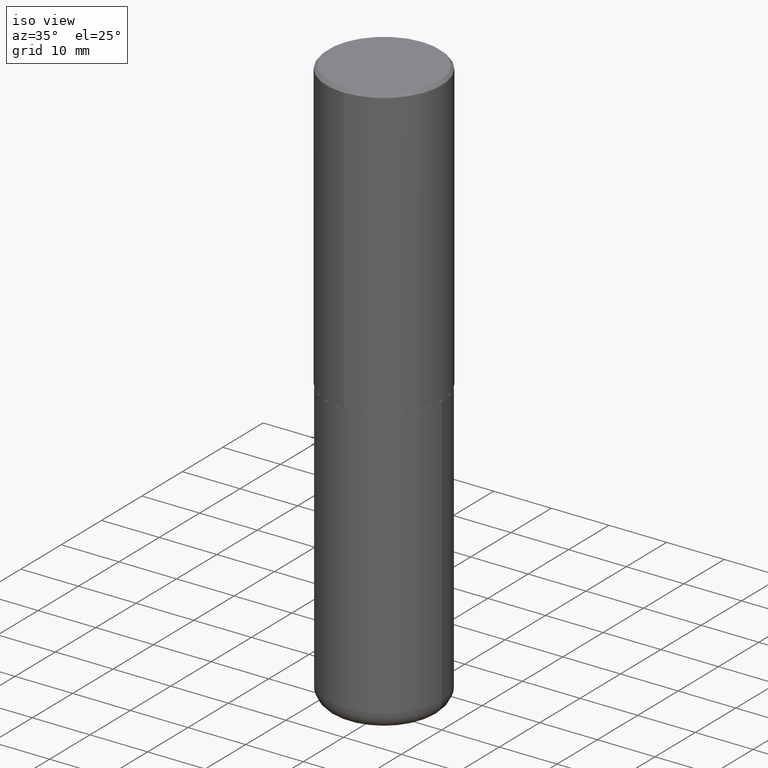
[diagram: clean part render]
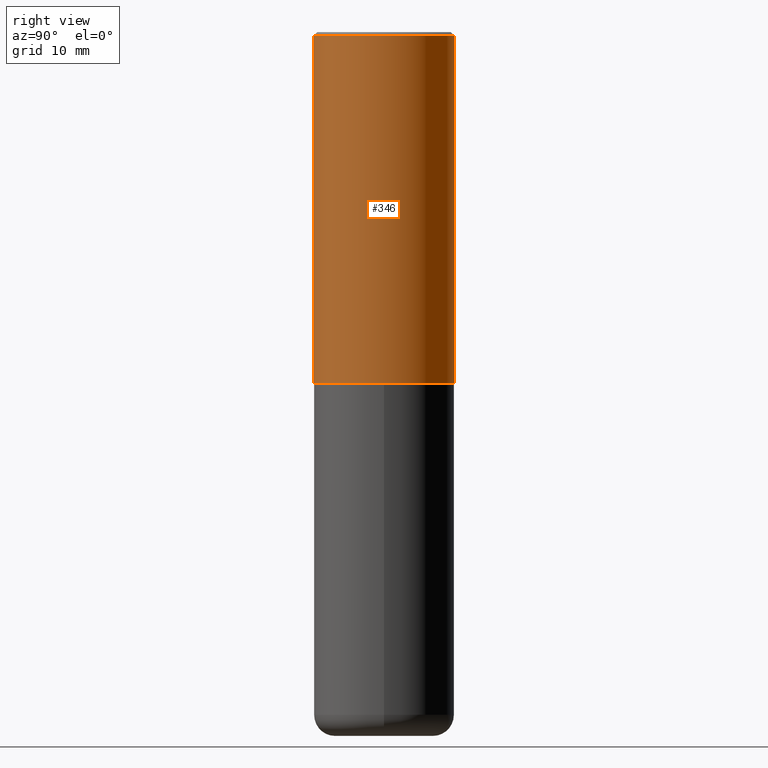
[diagram: tour spotlight — one face highlighted and labeled with its STEP entity id]
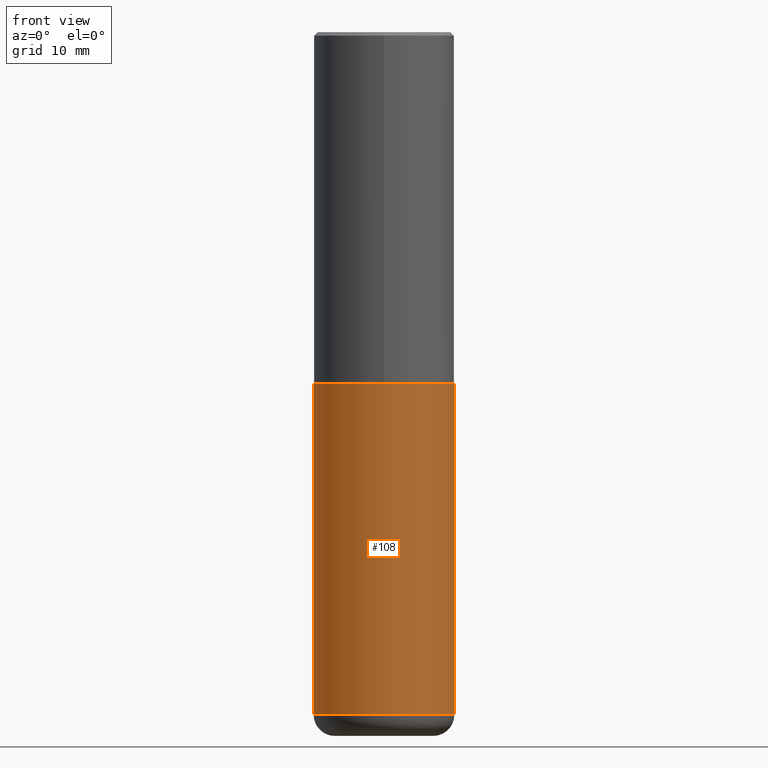
[diagram: tour spotlight — one face highlighted and labeled with its STEP entity id]
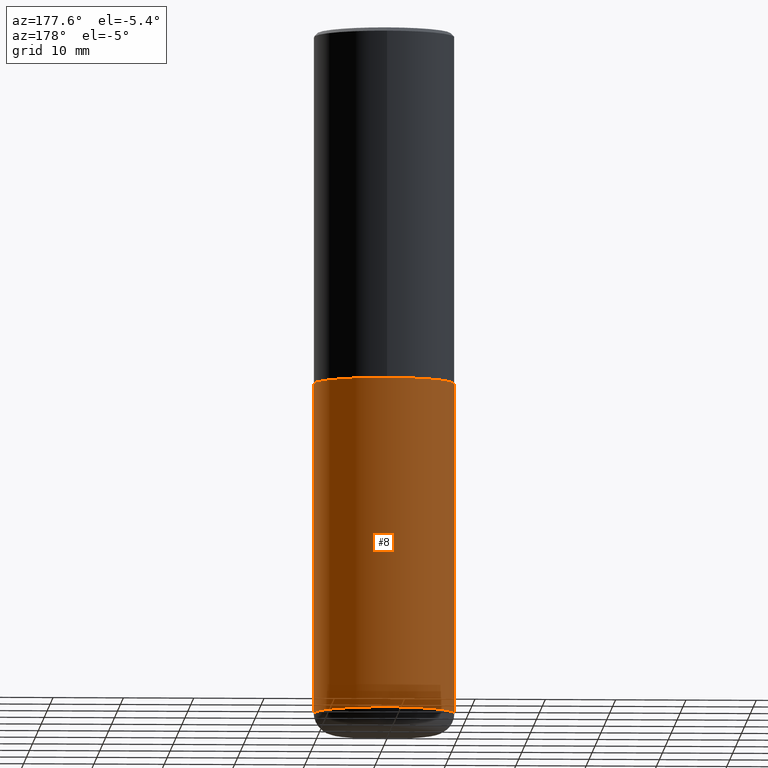
[diagram: tour spotlight — one face highlighted and labeled with its STEP entity id]
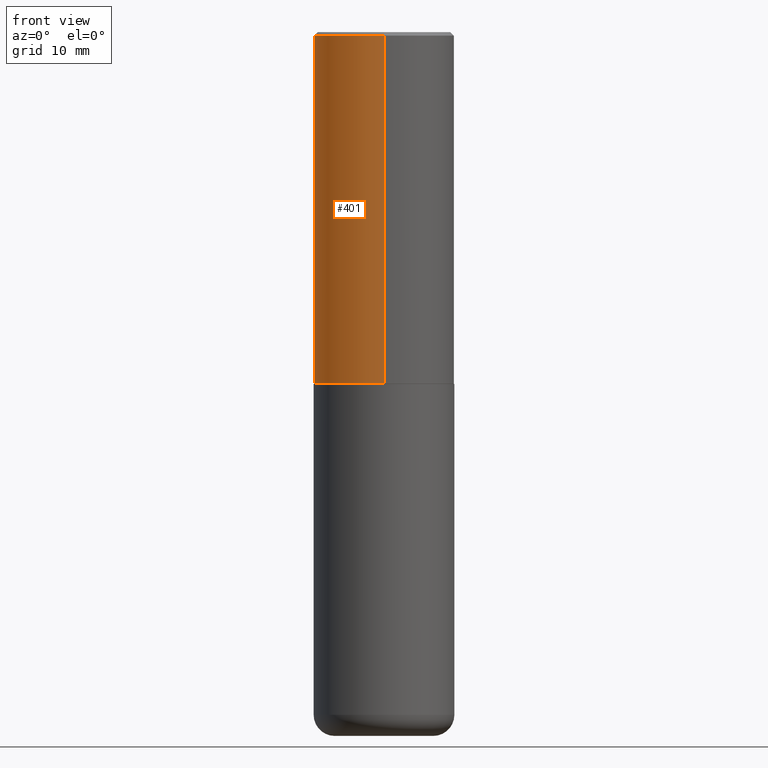
[diagram: tour spotlight — one face highlighted and labeled with its STEP entity id]
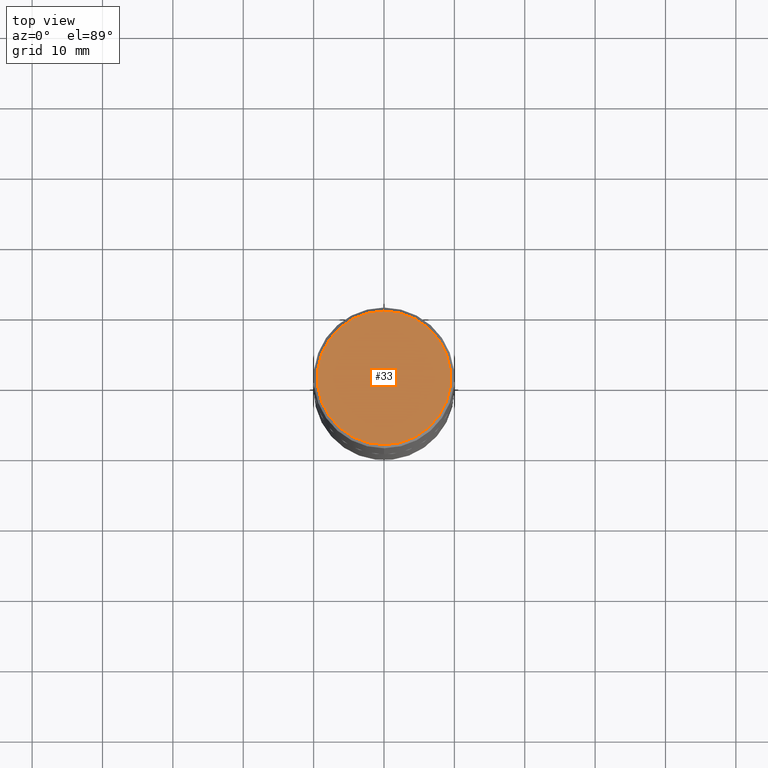
[diagram: tour spotlight — one face highlighted and labeled with its STEP entity id]
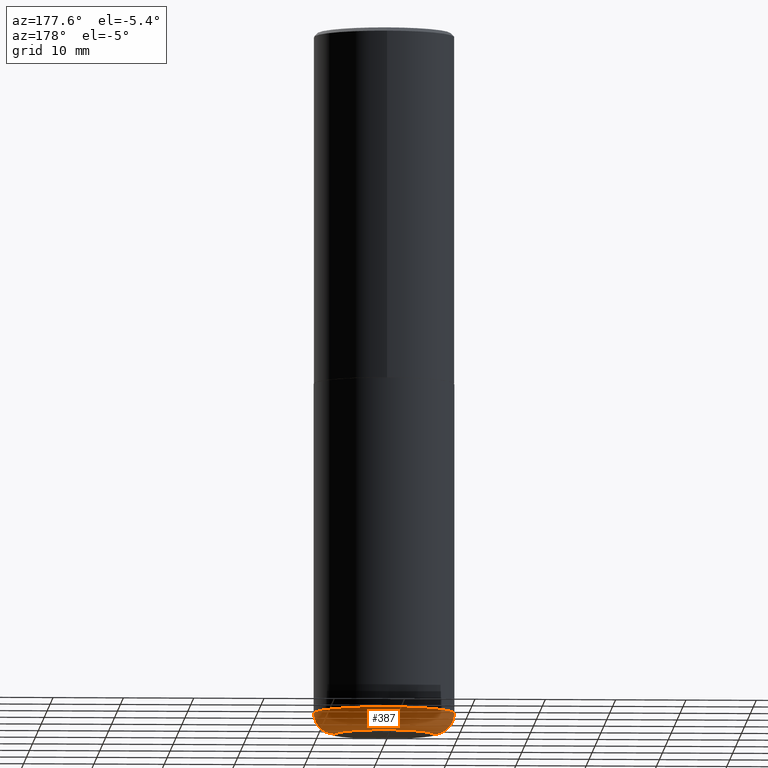
[diagram: tour spotlight — one face highlighted and labeled with its STEP entity id]
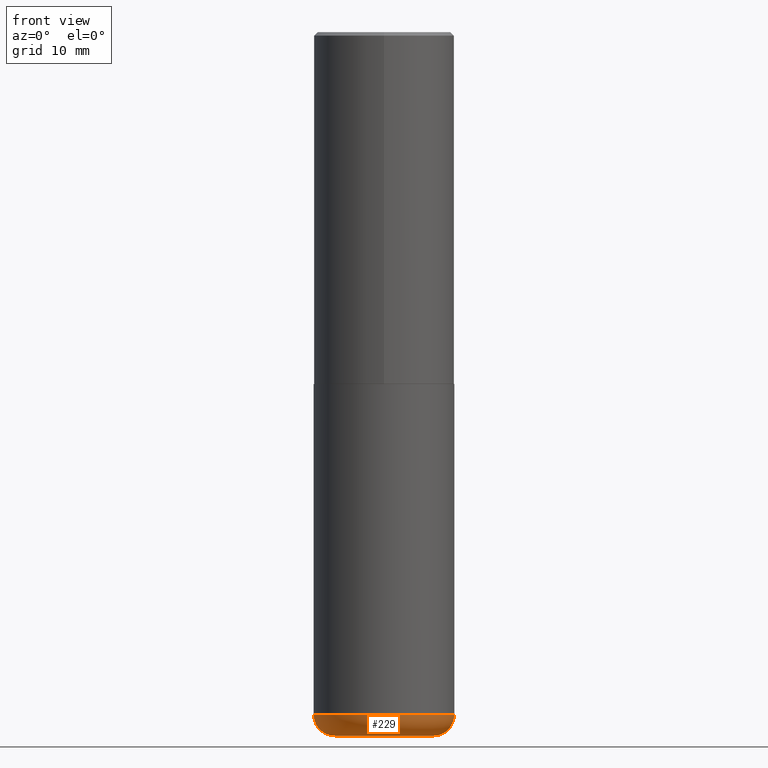
[diagram: tour spotlight — one face highlighted and labeled with its STEP entity id]
A machine part: a face-by-face anatomy tour. The part has 14 B-rep faces; the first image is the clean iso view, then the 7 largest visible faces are spotlighted one at a time (largest first), each with its STEP entity span.

Face 1 — right view, entity #346. In plain terms, the highlighted cylindrical surface (partial cylindrical patch) has radius 10 mm, axis along (-0, 0, 1).
Definition (entity closure, byte-faithful):
#3 = AXIS2_PLACEMENT_3D ( 'NONE', #375, #176, #403 ) ;
#40 = CARTESIAN_POINT ( 'NONE',  ( -2.749192406205084400E-15, -0.3937000000000002164, 1.373224176831512262E-15 ) ) ;
#46 = CARTESIAN_POINT ( 'NONE',  ( -2.749192406205036674E-15, -0.3937000000000070998, -1.967499999999998694 ) ) ;
#69 = ORIENTED_EDGE ( 'NONE', *, *, #71, .F. ) ;
#71 = EDGE_CURVE ( 'NONE', #351, #330, #103, .T. ) ;
#72 = DIRECTION ( 'NONE',  ( -6.982962677686265922E-15, -1.000000000000000000, 3.487996385144809360E-15 ) ) ;
#88 = DIRECTION ( 'NONE',  ( -2.447902336346030930E-29, 3.487996385144809755E-15, 1.000000000000000000 ) ) ;
#94 = VERTEX_POINT ( 'NONE', #344 ) ;
#96 = FACE_OUTER_BOUND ( 'NONE', #312, .T. ) ;
#103 = CIRCLE ( 'NONE', #309, 0.3937000000000001054 ) ;
#105 = CARTESIAN_POINT ( 'NONE',  ( 2.797406750687515575E-15, 0.3937000000000002164, -1.373224176831512262E-15 ) ) ;
#115 = CARTESIAN_POINT ( 'NONE',  ( 4.895804672692082949E-31, -6.975992770289649092E-17, -0.02000000000000008715 ) ) ;
#143 = LINE ( 'NONE', #40, #180 ) ;
#172 = CARTESIAN_POINT ( 'NONE',  ( -2.700978061722651647E-15, -0.3937000000000001609, -0.01999999999999870978 ) ) ;
#176 = DIRECTION ( 'NONE',  ( -2.447902336346030930E-29, 3.487996385144809755E-15, 1.000000000000000000 ) ) ;
#180 = VECTOR ( 'NONE', #283, 39.37007874015748143 ) ;
#185 = ORIENTED_EDGE ( 'NONE', *, *, #308, .T. ) ;
#208 = CARTESIAN_POINT ( 'NONE',  ( 2.749192406205084005E-15, 0.3937000000000000499, -0.02000000000000146105 ) ) ;
#231 = DIRECTION ( 'NONE',  ( -6.982962677686265133E-15, -1.000000000000000000, 3.491137977679279029E-15 ) ) ;
#242 = AXIS2_PLACEMENT_3D ( 'NONE', #246, #315, #72 ) ;
#246 = CARTESIAN_POINT ( 'NONE',  ( 0.000000000000000000, 0.000000000000000000, 0.000000000000000000 ) ) ;
#254 = LINE ( 'NONE', #105, #414 ) ;
#283 = DIRECTION ( 'NONE',  ( -2.447902336346030930E-29, 3.487996385144809360E-15, 1.000000000000000000 ) ) ;
#286 = CYLINDRICAL_SURFACE ( 'NONE', #242, 0.3937000000000002164 ) ;
#292 = CIRCLE ( 'NONE', #3, 0.3937000000000002720 ) ;
#308 = EDGE_CURVE ( 'NONE', #327, #94, #292, .T. ) ;
#309 = AXIS2_PLACEMENT_3D ( 'NONE', #115, #88, #231 ) ;
#312 = EDGE_LOOP ( 'NONE', ( #185, #364, #69, #365 ) ) ;
#315 = DIRECTION ( 'NONE',  ( -2.447902336346030930E-29, 3.487996385144809755E-15, 1.000000000000000000 ) ) ;
#316 = DIRECTION ( 'NONE',  ( -2.447902336346030930E-29, 3.487996385144809360E-15, 1.000000000000000000 ) ) ;
#327 = VERTEX_POINT ( 'NONE', #46 ) ;
#330 = VERTEX_POINT ( 'NONE', #208 ) ;
#344 = CARTESIAN_POINT ( 'NONE',  ( 2.797406750687540424E-15, 0.3936999999999934441, -1.967500000000001359 ) ) ;
#346 = ADVANCED_FACE ( 'NONE', ( #96 ), #286, .T. ) ;
#351 = VERTEX_POINT ( 'NONE', #172 ) ;
#364 = ORIENTED_EDGE ( 'NONE', *, *, #400, .T. ) ;
#365 = ORIENTED_EDGE ( 'NONE', *, *, #384, .F. ) ;
#375 = CARTESIAN_POINT ( 'NONE',  ( 4.816247846760815671E-29, -6.862632887772413316E-15, -1.967500000000000027 ) ) ;
#384 = EDGE_CURVE ( 'NONE', #327, #351, #143, .T. ) ;
#400 = EDGE_CURVE ( 'NONE', #94, #330, #254, .T. ) ;
#403 = DIRECTION ( 'NONE',  ( -6.982962677686265922E-15, -1.000000000000000000, 3.469453890861393601E-15 ) ) ;
#414 = VECTOR ( 'NONE', #316, 39.37007874015748143 ) ;

Face 2 — front view, entity #108. In plain terms, the highlighted cylindrical surface (partial cylindrical patch) has radius 10 mm, axis along (-0, 0, 1).
Definition (entity closure, byte-faithful):
#4 = VERTEX_POINT ( 'NONE', #173 ) ;
#21 = AXIS2_PLACEMENT_3D ( 'NONE', #326, #302, #362 ) ;
#26 = FACE_OUTER_BOUND ( 'NONE', #165, .T. ) ;
#30 = CARTESIAN_POINT ( 'NONE',  ( 9.339000823940418668E-29, -1.333361808490808928E-14, -3.818900000000000183 ) ) ;
#31 = CARTESIAN_POINT ( 'NONE',  ( -0.3937000000000001054, -1.053621133422057529E-14, -3.818900000000000183 ) ) ;
#62 = CARTESIAN_POINT ( 'NONE',  ( 0.3937000000000001054, -2.749192406205084005E-15, 1.919750796630860452E-29 ) ) ;
#65 = AXIS2_PLACEMENT_3D ( 'NONE', #66, #199, #92 ) ;
#66 = CARTESIAN_POINT ( 'NONE',  ( 4.813905344975441835E-29, -6.872981015512731707E-15, -1.968500000000000139 ) ) ;
#77 = EDGE_CURVE ( 'NONE', #417, #4, #356, .T. ) ;
#92 = DIRECTION ( 'NONE',  ( 1.000000000000000000, -6.982962677686265133E-15, 0.000000000000000000 ) ) ;
#108 = ADVANCED_FACE ( 'NONE', ( #26 ), #239, .T. ) ;
#111 = VERTEX_POINT ( 'NONE', #31 ) ;
#112 = CARTESIAN_POINT ( 'NONE',  ( 0.3937000000000001054, -1.608281049111317408E-14, -3.818900000000000183 ) ) ;
#116 = EDGE_CURVE ( 'NONE', #171, #4, #367, .T. ) ;
#155 = ORIENTED_EDGE ( 'NONE', *, *, #77, .T. ) ;
#165 = EDGE_LOOP ( 'NONE', ( #306, #357, #155, #205 ) ) ;
#171 = VERTEX_POINT ( 'NONE', #332 ) ;
#173 = CARTESIAN_POINT ( 'NONE',  ( 0.3937000000000000499, -9.622173421717814924E-15, -1.968500000000000139 ) ) ;
#178 = VECTOR ( 'NONE', #189, 39.37007874015748143 ) ;
#186 = DIRECTION ( 'NONE',  ( 1.000000000000000000, -6.982962677686266711E-15, 0.000000000000000000 ) ) ;
#189 = DIRECTION ( 'NONE',  ( -2.445468806185136877E-29, 3.491481338843145188E-15, 1.000000000000000000 ) ) ;
#199 = DIRECTION ( 'NONE',  ( -2.445468806185136597E-29, 3.491481338843145583E-15, 1.000000000000000000 ) ) ;
#205 = ORIENTED_EDGE ( 'NONE', *, *, #116, .F. ) ;
#207 = EDGE_CURVE ( 'NONE', #111, #171, #334, .T. ) ;
#219 = AXIS2_PLACEMENT_3D ( 'NONE', #30, #307, #186 ) ;
#239 = CYLINDRICAL_SURFACE ( 'NONE', #21, 0.3937000000000001054 ) ;
#265 = EDGE_CURVE ( 'NONE', #111, #417, #373, .T. ) ;
#267 = VECTOR ( 'NONE', #413, 39.37007874015748143 ) ;
#302 = DIRECTION ( 'NONE',  ( -2.445468806185136597E-29, 3.491481338843145583E-15, 1.000000000000000000 ) ) ;
#306 = ORIENTED_EDGE ( 'NONE', *, *, #207, .F. ) ;
#307 = DIRECTION ( 'NONE',  ( -2.445468806185136597E-29, 3.491481338843145583E-15, 1.000000000000000000 ) ) ;
#326 = CARTESIAN_POINT ( 'NONE',  ( 0.000000000000000000, 0.000000000000000000, 0.000000000000000000 ) ) ;
#332 = CARTESIAN_POINT ( 'NONE',  ( -0.3937000000000000499, -7.305892799522895709E-15, -1.968500000000000139 ) ) ;
#334 = LINE ( 'NONE', #352, #178 ) ;
#352 = CARTESIAN_POINT ( 'NONE',  ( -0.3937000000000001054, 2.797406750687515181E-15, -1.936584745033357016E-29 ) ) ;
#356 = LINE ( 'NONE', #62, #267 ) ;
#357 = ORIENTED_EDGE ( 'NONE', *, *, #265, .T. ) ;
#362 = DIRECTION ( 'NONE',  ( 1.000000000000000000, -6.982962677686266711E-15, 4.876176775795935793E-29 ) ) ;
#367 = CIRCLE ( 'NONE', #65, 0.3937000000000000499 ) ;
#373 = CIRCLE ( 'NONE', #219, 0.3937000000000001054 ) ;
#413 = DIRECTION ( 'NONE',  ( -2.445468806185136877E-29, 3.491481338843145188E-15, 1.000000000000000000 ) ) ;
#417 = VERTEX_POINT ( 'NONE', #112 ) ;

Face 3 — auxiliary view, entity #8. In plain terms, the highlighted cylindrical surface (partial cylindrical patch) has radius 10 mm, axis along (-0, 0, 1).
Definition (entity closure, byte-faithful):
#4 = VERTEX_POINT ( 'NONE', #173 ) ;
#8 = ADVANCED_FACE ( 'NONE', ( #106 ), #148, .T. ) ;
#22 = ORIENTED_EDGE ( 'NONE', *, *, #77, .F. ) ;
#31 = CARTESIAN_POINT ( 'NONE',  ( -0.3937000000000001054, -1.053621133422057529E-14, -3.818900000000000183 ) ) ;
#47 = CARTESIAN_POINT ( 'NONE',  ( 4.813905344975441835E-29, -6.872981015512731707E-15, -1.968500000000000139 ) ) ;
#48 = DIRECTION ( 'NONE',  ( 1.000000000000000000, -6.982962677686266711E-15, 4.876176775795935793E-29 ) ) ;
#52 = EDGE_CURVE ( 'NONE', #4, #171, #258, .T. ) ;
#58 = DIRECTION ( 'NONE',  ( -2.445468806185136597E-29, 3.491481338843145583E-15, 1.000000000000000000 ) ) ;
#62 = CARTESIAN_POINT ( 'NONE',  ( 0.3937000000000001054, -2.749192406205084005E-15, 1.919750796630860452E-29 ) ) ;
#70 = AXIS2_PLACEMENT_3D ( 'NONE', #191, #328, #294 ) ;
#77 = EDGE_CURVE ( 'NONE', #417, #4, #356, .T. ) ;
#79 = DIRECTION ( 'NONE',  ( -2.445468806185136597E-29, 3.491481338843145583E-15, 1.000000000000000000 ) ) ;
#83 = EDGE_CURVE ( 'NONE', #417, #111, #331, .T. ) ;
#106 = FACE_OUTER_BOUND ( 'NONE', #114, .T. ) ;
#111 = VERTEX_POINT ( 'NONE', #31 ) ;
#112 = CARTESIAN_POINT ( 'NONE',  ( 0.3937000000000001054, -1.608281049111317408E-14, -3.818900000000000183 ) ) ;
#114 = EDGE_LOOP ( 'NONE', ( #333, #270, #274, #22 ) ) ;
#148 = CYLINDRICAL_SURFACE ( 'NONE', #314, 0.3937000000000001054 ) ;
#171 = VERTEX_POINT ( 'NONE', #332 ) ;
#173 = CARTESIAN_POINT ( 'NONE',  ( 0.3937000000000000499, -9.622173421717814924E-15, -1.968500000000000139 ) ) ;
#178 = VECTOR ( 'NONE', #189, 39.37007874015748143 ) ;
#189 = DIRECTION ( 'NONE',  ( -2.445468806185136877E-29, 3.491481338843145188E-15, 1.000000000000000000 ) ) ;
#191 = CARTESIAN_POINT ( 'NONE',  ( 9.339000823940418668E-29, -1.333361808490808928E-14, -3.818900000000000183 ) ) ;
#196 = AXIS2_PLACEMENT_3D ( 'NONE', #47, #58, #323 ) ;
#207 = EDGE_CURVE ( 'NONE', #111, #171, #334, .T. ) ;
#258 = CIRCLE ( 'NONE', #196, 0.3937000000000000499 ) ;
#267 = VECTOR ( 'NONE', #413, 39.37007874015748143 ) ;
#270 = ORIENTED_EDGE ( 'NONE', *, *, #207, .T. ) ;
#274 = ORIENTED_EDGE ( 'NONE', *, *, #52, .F. ) ;
#294 = DIRECTION ( 'NONE',  ( 1.000000000000000000, -6.982962677686266711E-15, 0.000000000000000000 ) ) ;
#314 = AXIS2_PLACEMENT_3D ( 'NONE', #404, #79, #48 ) ;
#323 = DIRECTION ( 'NONE',  ( 1.000000000000000000, -6.982962677686265133E-15, 0.000000000000000000 ) ) ;
#328 = DIRECTION ( 'NONE',  ( -2.445468806185136597E-29, 3.491481338843145583E-15, 1.000000000000000000 ) ) ;
#331 = CIRCLE ( 'NONE', #70, 0.3937000000000001054 ) ;
#332 = CARTESIAN_POINT ( 'NONE',  ( -0.3937000000000000499, -7.305892799522895709E-15, -1.968500000000000139 ) ) ;
#333 = ORIENTED_EDGE ( 'NONE', *, *, #83, .T. ) ;
#334 = LINE ( 'NONE', #352, #178 ) ;
#352 = CARTESIAN_POINT ( 'NONE',  ( -0.3937000000000001054, 2.797406750687515181E-15, -1.936584745033357016E-29 ) ) ;
#356 = LINE ( 'NONE', #62, #267 ) ;
#404 = CARTESIAN_POINT ( 'NONE',  ( 0.000000000000000000, 0.000000000000000000, 0.000000000000000000 ) ) ;
#413 = DIRECTION ( 'NONE',  ( -2.445468806185136877E-29, 3.491481338843145188E-15, 1.000000000000000000 ) ) ;
#417 = VERTEX_POINT ( 'NONE', #112 ) ;

Face 4 — front view, entity #401. In plain terms, the highlighted cylindrical surface (partial cylindrical patch) has radius 10 mm, axis along (-0, 0, 1).
Definition (entity closure, byte-faithful):
#16 = EDGE_CURVE ( 'NONE', #94, #327, #81, .T. ) ;
#23 = DIRECTION ( 'NONE',  ( -6.982962677686265922E-15, -1.000000000000000000, 3.469453890861393601E-15 ) ) ;
#25 = CARTESIAN_POINT ( 'NONE',  ( 4.895804672692082949E-31, -6.975992770289649092E-17, -0.02000000000000008715 ) ) ;
#36 = AXIS2_PLACEMENT_3D ( 'NONE', #228, #220, #23 ) ;
#40 = CARTESIAN_POINT ( 'NONE',  ( -2.749192406205084400E-15, -0.3937000000000002164, 1.373224176831512262E-15 ) ) ;
#41 = DIRECTION ( 'NONE',  ( -6.982962677686265922E-15, -1.000000000000000000, 3.487996385144809360E-15 ) ) ;
#46 = CARTESIAN_POINT ( 'NONE',  ( -2.749192406205036674E-15, -0.3937000000000070998, -1.967499999999998694 ) ) ;
#81 = CIRCLE ( 'NONE', #36, 0.3937000000000002720 ) ;
#94 = VERTEX_POINT ( 'NONE', #344 ) ;
#105 = CARTESIAN_POINT ( 'NONE',  ( 2.797406750687515575E-15, 0.3937000000000002164, -1.373224176831512262E-15 ) ) ;
#110 = CIRCLE ( 'NONE', #325, 0.3937000000000001054 ) ;
#122 = EDGE_LOOP ( 'NONE', ( #311, #390, #418, #271 ) ) ;
#143 = LINE ( 'NONE', #40, #180 ) ;
#164 = DIRECTION ( 'NONE',  ( -6.982962677686265133E-15, -1.000000000000000000, 3.491137977679279029E-15 ) ) ;
#166 = DIRECTION ( 'NONE',  ( -2.447902336346030930E-29, 3.487996385144809755E-15, 1.000000000000000000 ) ) ;
#172 = CARTESIAN_POINT ( 'NONE',  ( -2.700978061722651647E-15, -0.3937000000000001609, -0.01999999999999870978 ) ) ;
#180 = VECTOR ( 'NONE', #283, 39.37007874015748143 ) ;
#208 = CARTESIAN_POINT ( 'NONE',  ( 2.749192406205084005E-15, 0.3937000000000000499, -0.02000000000000146105 ) ) ;
#211 = CARTESIAN_POINT ( 'NONE',  ( 0.000000000000000000, 0.000000000000000000, 0.000000000000000000 ) ) ;
#220 = DIRECTION ( 'NONE',  ( -2.447902336346030930E-29, 3.487996385144809755E-15, 1.000000000000000000 ) ) ;
#222 = FACE_OUTER_BOUND ( 'NONE', #122, .T. ) ;
#228 = CARTESIAN_POINT ( 'NONE',  ( 4.816247846760815671E-29, -6.862632887772413316E-15, -1.967500000000000027 ) ) ;
#236 = EDGE_CURVE ( 'NONE', #330, #351, #110, .T. ) ;
#254 = LINE ( 'NONE', #105, #414 ) ;
#271 = ORIENTED_EDGE ( 'NONE', *, *, #236, .F. ) ;
#283 = DIRECTION ( 'NONE',  ( -2.447902336346030930E-29, 3.487996385144809360E-15, 1.000000000000000000 ) ) ;
#311 = ORIENTED_EDGE ( 'NONE', *, *, #400, .F. ) ;
#316 = DIRECTION ( 'NONE',  ( -2.447902336346030930E-29, 3.487996385144809360E-15, 1.000000000000000000 ) ) ;
#325 = AXIS2_PLACEMENT_3D ( 'NONE', #25, #166, #164 ) ;
#327 = VERTEX_POINT ( 'NONE', #46 ) ;
#330 = VERTEX_POINT ( 'NONE', #208 ) ;
#344 = CARTESIAN_POINT ( 'NONE',  ( 2.797406750687540424E-15, 0.3936999999999934441, -1.967500000000001359 ) ) ;
#348 = AXIS2_PLACEMENT_3D ( 'NONE', #211, #379, #41 ) ;
#351 = VERTEX_POINT ( 'NONE', #172 ) ;
#379 = DIRECTION ( 'NONE',  ( -2.447902336346030930E-29, 3.487996385144809755E-15, 1.000000000000000000 ) ) ;
#384 = EDGE_CURVE ( 'NONE', #327, #351, #143, .T. ) ;
#390 = ORIENTED_EDGE ( 'NONE', *, *, #16, .T. ) ;
#395 = CYLINDRICAL_SURFACE ( 'NONE', #348, 0.3937000000000002164 ) ;
#400 = EDGE_CURVE ( 'NONE', #94, #330, #254, .T. ) ;
#401 = ADVANCED_FACE ( 'NONE', ( #222 ), #395, .T. ) ;
#414 = VECTOR ( 'NONE', #316, 39.37007874015748143 ) ;
#418 = ORIENTED_EDGE ( 'NONE', *, *, #384, .T. ) ;

Face 5 — top view, entity #33. In plain terms, the highlighted planar face has unit normal (0, -0, -1).
Definition (entity closure, byte-faithful):
#2 = EDGE_CURVE ( 'NONE', #93, #264, #250, .T. ) ;
#19 = CARTESIAN_POINT ( 'NONE',  ( 2.609533152651356620E-15, 0.3736999999999999211, -1.190999831739488445E-15 ) ) ;
#33 = ADVANCED_FACE ( 'NONE', ( #51 ), #158, .F. ) ;
#51 = FACE_OUTER_BOUND ( 'NONE', #303, .T. ) ;
#93 = VERTEX_POINT ( 'NONE', #212 ) ;
#99 = DIRECTION ( 'NONE',  ( -2.447902336346030930E-29, 3.487996385144809755E-15, 1.000000000000000000 ) ) ;
#119 = AXIS2_PLACEMENT_3D ( 'NONE', #299, #305, #192 ) ;
#125 = EDGE_CURVE ( 'NONE', #264, #93, #230, .T. ) ;
#158 = PLANE ( 'NONE',  #204 ) ;
#184 = DIRECTION ( 'NONE',  ( 2.447902336346030930E-29, -3.487996385144809360E-15, -1.000000000000000000 ) ) ;
#192 = DIRECTION ( 'NONE',  ( -6.982962677686265133E-15, -1.000000000000000000, 3.487996385144809755E-15 ) ) ;
#198 = CARTESIAN_POINT ( 'NONE',  ( -2.632373081744936315E-15, -0.3736999999999999211, 1.528393083906868747E-15 ) ) ;
#204 = AXIS2_PLACEMENT_3D ( 'NONE', #19, #184, #261 ) ;
#212 = CARTESIAN_POINT ( 'NONE',  ( 2.679362779428220707E-15, 0.3736999999999999211, -1.078535414350361218E-15 ) ) ;
#230 = CIRCLE ( 'NONE', #119, 0.3736999999999999211 ) ;
#244 = ORIENTED_EDGE ( 'NONE', *, *, #2, .T. ) ;
#250 = CIRCLE ( 'NONE', #278, 0.3736999999999999211 ) ;
#261 = DIRECTION ( 'NONE',  ( 6.982962677686265922E-15, 1.000000000000000000, -3.487996385144809360E-15 ) ) ;
#264 = VERTEX_POINT ( 'NONE', #198 ) ;
#278 = AXIS2_PLACEMENT_3D ( 'NONE', #399, #99, #318 ) ;
#299 = CARTESIAN_POINT ( 'NONE',  ( -5.506038201652776757E-45, 7.845509626213831500E-31, 2.249288347782537153E-16 ) ) ;
#301 = ORIENTED_EDGE ( 'NONE', *, *, #125, .T. ) ;
#303 = EDGE_LOOP ( 'NONE', ( #244, #301 ) ) ;
#305 = DIRECTION ( 'NONE',  ( -2.447902336346030930E-29, 3.487996385144809755E-15, 1.000000000000000000 ) ) ;
#318 = DIRECTION ( 'NONE',  ( -6.982962677686265133E-15, -1.000000000000000000, 3.487996385144809755E-15 ) ) ;
#399 = CARTESIAN_POINT ( 'NONE',  ( -5.506038201652776757E-45, 7.845509626213831500E-31, 2.249288347782537153E-16 ) ) ;

Face 6 — auxiliary view, entity #387. In plain terms, the highlighted toroidal blend (fillet) surface has major radius 7.0002 mm and minor (blend) radius 2.9997 mm.
Definition (entity closure, byte-faithful):
#7 = CARTESIAN_POINT ( 'NONE',  ( 9.627810689950883669E-29, -1.374596203102546341E-14, -3.937000000000000277 ) ) ;
#11 = DIRECTION ( 'NONE',  ( 1.000000000000000000, -6.982962677686265922E-15, 0.000000000000000000 ) ) ;
#15 = AXIS2_PLACEMENT_3D ( 'NONE', #7, #282, #11 ) ;
#31 = CARTESIAN_POINT ( 'NONE',  ( -0.3937000000000001054, -1.053621133422057529E-14, -3.818900000000000183 ) ) ;
#70 = AXIS2_PLACEMENT_3D ( 'NONE', #191, #328, #294 ) ;
#83 = EDGE_CURVE ( 'NONE', #417, #111, #331, .T. ) ;
#90 = DIRECTION ( 'NONE',  ( 7.105427357601001859E-15, 1.000000000000000000, -3.491481338843145583E-15 ) ) ;
#101 = EDGE_CURVE ( 'NONE', #363, #111, #398, .T. ) ;
#111 = VERTEX_POINT ( 'NONE', #31 ) ;
#112 = CARTESIAN_POINT ( 'NONE',  ( 0.3937000000000001054, -1.608281049111317408E-14, -3.818900000000000183 ) ) ;
#133 = EDGE_LOOP ( 'NONE', ( #335, #388, #170, #405 ) ) ;
#137 = CARTESIAN_POINT ( 'NONE',  ( 0.2756000000000000116, -1.525812259887842581E-14, -3.818900000000000183 ) ) ;
#138 = DIRECTION ( 'NONE',  ( 1.000000000000000000, -6.982962677686269077E-15, 0.000000000000000000 ) ) ;
#144 = TOROIDAL_SURFACE ( 'NONE', #202, 0.2756000000000000116, 0.1181000000000000522 ) ;
#170 = ORIENTED_EDGE ( 'NONE', *, *, #83, .F. ) ;
#187 = CARTESIAN_POINT ( 'NONE',  ( -0.2756000000000000116, -1.116195879274560421E-14, -3.937000000000000277 ) ) ;
#191 = CARTESIAN_POINT ( 'NONE',  ( 9.339000823940418668E-29, -1.333361808490808928E-14, -3.818900000000000183 ) ) ;
#202 = AXIS2_PLACEMENT_3D ( 'NONE', #377, #342, #287 ) ;
#251 = CIRCLE ( 'NONE', #368, 0.1181000000000000660 ) ;
#269 = DIRECTION ( 'NONE',  ( -1.000000000000000000, 7.105427357601000281E-15, 0.000000000000000000 ) ) ;
#282 = DIRECTION ( 'NONE',  ( -2.445468806185136597E-29, 3.491481338843145583E-15, 1.000000000000000000 ) ) ;
#287 = DIRECTION ( 'NONE',  ( 1.000000000000000000, -6.982962677686266711E-15, 4.883557194083112340E-29 ) ) ;
#290 = FACE_OUTER_BOUND ( 'NONE', #133, .T. ) ;
#294 = DIRECTION ( 'NONE',  ( 1.000000000000000000, -6.982962677686266711E-15, 0.000000000000000000 ) ) ;
#313 = CARTESIAN_POINT ( 'NONE',  ( 0.2756000000000000116, -1.567046654499579837E-14, -3.937000000000000277 ) ) ;
#328 = DIRECTION ( 'NONE',  ( -2.445468806185136597E-29, 3.491481338843145583E-15, 1.000000000000000000 ) ) ;
#331 = CIRCLE ( 'NONE', #70, 0.3937000000000001054 ) ;
#335 = ORIENTED_EDGE ( 'NONE', *, *, #354, .T. ) ;
#338 = VERTEX_POINT ( 'NONE', #313 ) ;
#342 = DIRECTION ( 'NONE',  ( -2.445468806185136597E-29, 3.491481338843145583E-15, 1.000000000000000000 ) ) ;
#349 = DIRECTION ( 'NONE',  ( -6.982962677686266711E-15, -1.000000000000000000, 3.491481338843145583E-15 ) ) ;
#354 = EDGE_CURVE ( 'NONE', #338, #363, #386, .T. ) ;
#358 = EDGE_CURVE ( 'NONE', #338, #417, #251, .T. ) ;
#363 = VERTEX_POINT ( 'NONE', #187 ) ;
#368 = AXIS2_PLACEMENT_3D ( 'NONE', #137, #349, #138 ) ;
#377 = CARTESIAN_POINT ( 'NONE',  ( 9.339000823940418668E-29, -1.333361808490808928E-14, -3.818900000000000183 ) ) ;
#383 = CARTESIAN_POINT ( 'NONE',  ( -0.2756000000000000116, -1.137536230515325427E-14, -3.818900000000000183 ) ) ;
#386 = CIRCLE ( 'NONE', #15, 0.2756000000000000116 ) ;
#387 = ADVANCED_FACE ( 'NONE', ( #290 ), #144, .T. ) ;
#388 = ORIENTED_EDGE ( 'NONE', *, *, #101, .T. ) ;
#389 = AXIS2_PLACEMENT_3D ( 'NONE', #383, #90, #269 ) ;
#398 = CIRCLE ( 'NONE', #389, 0.1181000000000000660 ) ;
#405 = ORIENTED_EDGE ( 'NONE', *, *, #358, .F. ) ;
#417 = VERTEX_POINT ( 'NONE', #112 ) ;

Face 7 — front view, entity #229. In plain terms, the highlighted toroidal blend (fillet) surface has major radius 7.0002 mm and minor (blend) radius 2.9997 mm.
Definition (entity closure, byte-faithful):
#10 = EDGE_CURVE ( 'NONE', #363, #338, #154, .T. ) ;
#27 = AXIS2_PLACEMENT_3D ( 'NONE', #350, #82, #268 ) ;
#30 = CARTESIAN_POINT ( 'NONE',  ( 9.339000823940418668E-29, -1.333361808490808928E-14, -3.818900000000000183 ) ) ;
#31 = CARTESIAN_POINT ( 'NONE',  ( -0.3937000000000001054, -1.053621133422057529E-14, -3.818900000000000183 ) ) ;
#32 = ORIENTED_EDGE ( 'NONE', *, *, #10, .T. ) ;
#56 = ORIENTED_EDGE ( 'NONE', *, *, #358, .T. ) ;
#82 = DIRECTION ( 'NONE',  ( -2.445468806185136597E-29, 3.491481338843145583E-15, 1.000000000000000000 ) ) ;
#89 = CARTESIAN_POINT ( 'NONE',  ( 9.339000823940418668E-29, -1.333361808490808928E-14, -3.818900000000000183 ) ) ;
#90 = DIRECTION ( 'NONE',  ( 7.105427357601001859E-15, 1.000000000000000000, -3.491481338843145583E-15 ) ) ;
#101 = EDGE_CURVE ( 'NONE', #363, #111, #398, .T. ) ;
#111 = VERTEX_POINT ( 'NONE', #31 ) ;
#112 = CARTESIAN_POINT ( 'NONE',  ( 0.3937000000000001054, -1.608281049111317408E-14, -3.818900000000000183 ) ) ;
#121 = DIRECTION ( 'NONE',  ( -2.445468806185136597E-29, 3.491481338843145583E-15, 1.000000000000000000 ) ) ;
#137 = CARTESIAN_POINT ( 'NONE',  ( 0.2756000000000000116, -1.525812259887842581E-14, -3.818900000000000183 ) ) ;
#138 = DIRECTION ( 'NONE',  ( 1.000000000000000000, -6.982962677686269077E-15, 0.000000000000000000 ) ) ;
#154 = CIRCLE ( 'NONE', #27, 0.2756000000000000116 ) ;
#186 = DIRECTION ( 'NONE',  ( 1.000000000000000000, -6.982962677686266711E-15, 0.000000000000000000 ) ) ;
#187 = CARTESIAN_POINT ( 'NONE',  ( -0.2756000000000000116, -1.116195879274560421E-14, -3.937000000000000277 ) ) ;
#201 = ORIENTED_EDGE ( 'NONE', *, *, #101, .F. ) ;
#219 = AXIS2_PLACEMENT_3D ( 'NONE', #30, #307, #186 ) ;
#229 = ADVANCED_FACE ( 'NONE', ( #411 ), #243, .T. ) ;
#232 = DIRECTION ( 'NONE',  ( 1.000000000000000000, -6.982962677686266711E-15, 4.883557194083112340E-29 ) ) ;
#243 = TOROIDAL_SURFACE ( 'NONE', #298, 0.2756000000000000116, 0.1181000000000000522 ) ;
#251 = CIRCLE ( 'NONE', #368, 0.1181000000000000660 ) ;
#265 = EDGE_CURVE ( 'NONE', #111, #417, #373, .T. ) ;
#268 = DIRECTION ( 'NONE',  ( 1.000000000000000000, -6.982962677686265922E-15, 0.000000000000000000 ) ) ;
#269 = DIRECTION ( 'NONE',  ( -1.000000000000000000, 7.105427357601000281E-15, 0.000000000000000000 ) ) ;
#273 = ORIENTED_EDGE ( 'NONE', *, *, #265, .F. ) ;
#298 = AXIS2_PLACEMENT_3D ( 'NONE', #89, #121, #232 ) ;
#307 = DIRECTION ( 'NONE',  ( -2.445468806185136597E-29, 3.491481338843145583E-15, 1.000000000000000000 ) ) ;
#313 = CARTESIAN_POINT ( 'NONE',  ( 0.2756000000000000116, -1.567046654499579837E-14, -3.937000000000000277 ) ) ;
#338 = VERTEX_POINT ( 'NONE', #313 ) ;
#349 = DIRECTION ( 'NONE',  ( -6.982962677686266711E-15, -1.000000000000000000, 3.491481338843145583E-15 ) ) ;
#350 = CARTESIAN_POINT ( 'NONE',  ( 9.627810689950883669E-29, -1.374596203102546341E-14, -3.937000000000000277 ) ) ;
#358 = EDGE_CURVE ( 'NONE', #338, #417, #251, .T. ) ;
#363 = VERTEX_POINT ( 'NONE', #187 ) ;
#368 = AXIS2_PLACEMENT_3D ( 'NONE', #137, #349, #138 ) ;
#373 = CIRCLE ( 'NONE', #219, 0.3937000000000001054 ) ;
#383 = CARTESIAN_POINT ( 'NONE',  ( -0.2756000000000000116, -1.137536230515325427E-14, -3.818900000000000183 ) ) ;
#389 = AXIS2_PLACEMENT_3D ( 'NONE', #383, #90, #269 ) ;
#393 = EDGE_LOOP ( 'NONE', ( #201, #32, #56, #273 ) ) ;
#398 = CIRCLE ( 'NONE', #389, 0.1181000000000000660 ) ;
#411 = FACE_OUTER_BOUND ( 'NONE', #393, .T. ) ;
#417 = VERTEX_POINT ( 'NONE', #112 ) ;